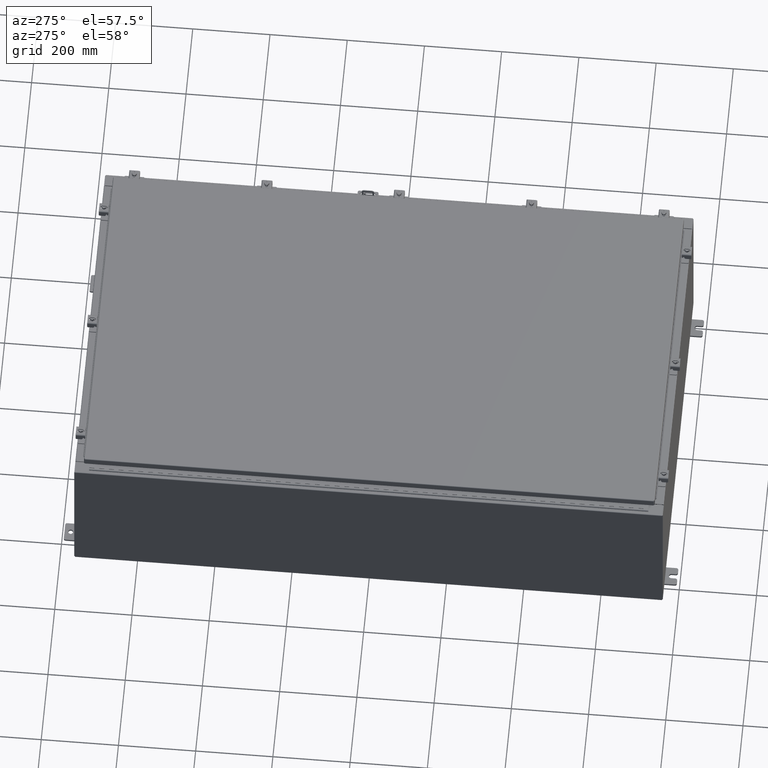
[diagram: clean part render]
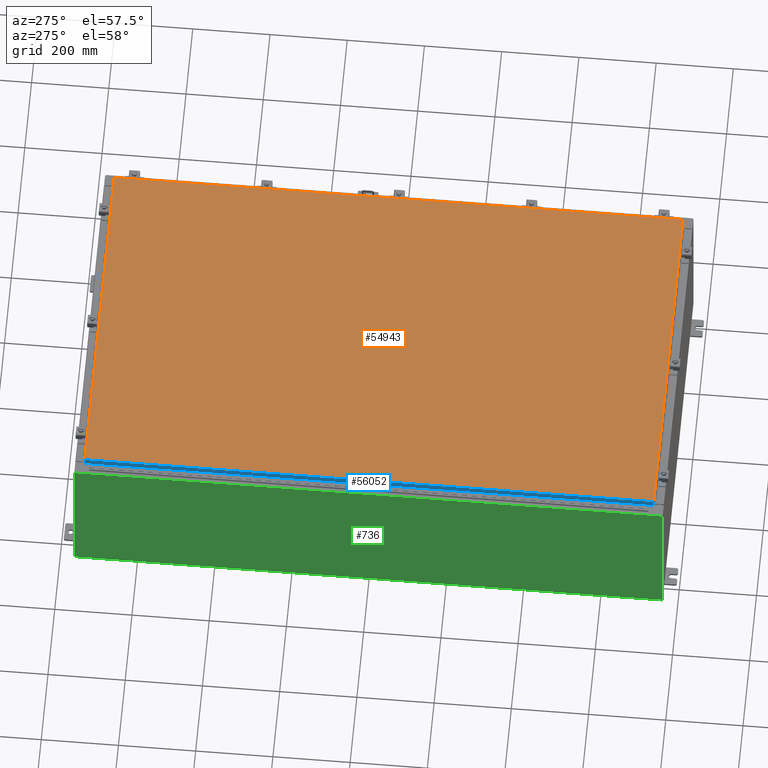
[diagram: same view with three faces highlighted in distinct colors, each labeled with its STEP entity id]
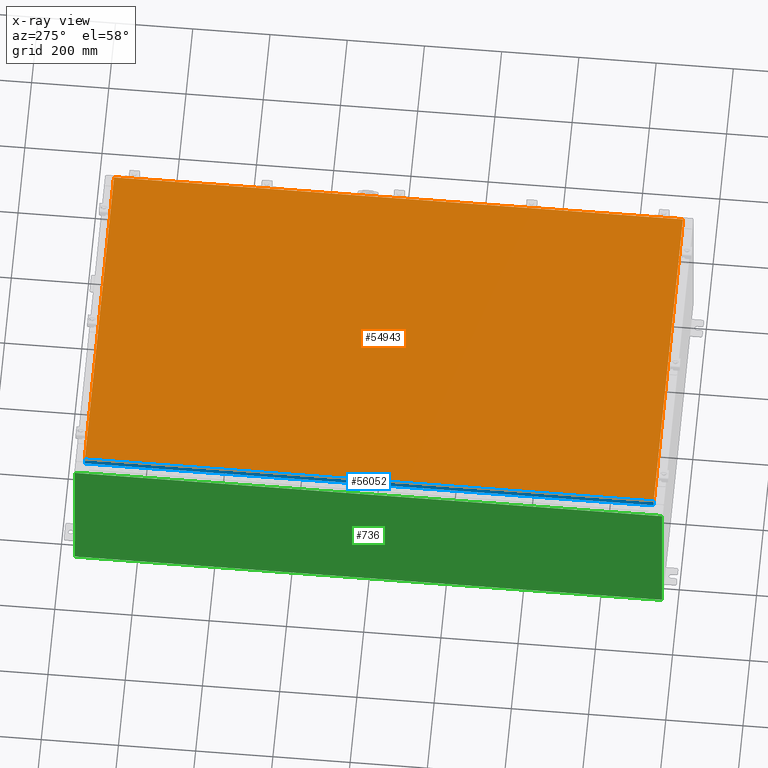
[diagram: x-ray of the same camera — body ghosted, the three highlighted faces saturated]
A machine part, auxiliary view with three faces highlighted in distinct colors.
The next image is the same camera in x-ray (body ghosted, the three faces saturated) — at least one of them is partly hidden behind the body in this view.
Their STEP definitions:

[orange] entity #54943 — the highlighted planar face has unit normal (0, 0, -1).
#248 = VECTOR ( 'NONE', #38539, 39.37007874015748100 ) ;
#1824 = LINE ( 'NONE', #38757, #248 ) ;
#3223 = VERTEX_POINT ( 'NONE', #8023 ) ;
#3505 = PLANE ( 'NONE',  #47360 ) ;
#3523 = CARTESIAN_POINT ( 'NONE',  ( 16.99030000000000500, -29.00630000000000000, -2.048885995248197400E-016 ) ) ;
#3841 = DIRECTION ( 'NONE',  ( 1.000000000000000000, -0.0000000000000000000, -0.0000000000000000000 ) ) ;
#3909 = EDGE_CURVE ( 'NONE', #44026, #21661, #1824, .T. ) ;
#5723 = ORIENTED_EDGE ( 'NONE', *, *, #49598, .T. ) ;
#5848 = CARTESIAN_POINT ( 'NONE',  ( -16.99029999999998400, 29.00630000000000000, 4.166068190338001500E-015 ) ) ;
#7656 = LINE ( 'NONE', #24133, #57832 ) ;
#8023 = CARTESIAN_POINT ( 'NONE',  ( -16.99029999999999800, -29.00630000000000300, 1.946441695485787500E-015 ) ) ;
#8465 = DIRECTION ( 'NONE',  ( -1.000000000000000000, 0.0000000000000000000, -0.0000000000000000000 ) ) ;
#17051 = VECTOR ( 'NONE', #25513, 39.37007874015748100 ) ;
#21252 = ORIENTED_EDGE ( 'NONE', *, *, #54045, .T. ) ;
#21661 = VERTEX_POINT ( 'NONE', #5848 ) ;
#24133 = CARTESIAN_POINT ( 'NONE',  ( 16.99030000000000500, -29.00630000000000000, -2.048885995248197400E-016 ) ) ;
#25513 = DIRECTION ( 'NONE',  ( 0.0000000000000000000, -1.000000000000000000, 0.0000000000000000000 ) ) ;
#29927 = LINE ( 'NONE', #30204, #17051 ) ;
#30204 = CARTESIAN_POINT ( 'NONE',  ( -16.99029999999998400, 29.00630000000000000, 4.166068190338001500E-015 ) ) ;
#31404 = VERTEX_POINT ( 'NONE', #3523 ) ;
#37519 = DIRECTION ( 'NONE',  ( 0.0000000000000000000, 0.0000000000000000000, -1.000000000000000000 ) ) ;
#37689 = FACE_OUTER_BOUND ( 'NONE', #56478, .T. ) ;
#37878 = CARTESIAN_POINT ( 'NONE',  ( -16.99029999999999800, -29.00630000000000300, 1.946441695485787500E-015 ) ) ;
#38539 = DIRECTION ( 'NONE',  ( -1.000000000000000000, -0.0000000000000000000, -0.0000000000000000000 ) ) ;
#38757 = CARTESIAN_POINT ( 'NONE',  ( 16.99030000000000500, 29.00630000000000300, 1.946441695485787500E-015 ) ) ;
#39799 = VECTOR ( 'NONE', #3841, 39.37007874015748100 ) ;
#41352 = ORIENTED_EDGE ( 'NONE', *, *, #3909, .T. ) ;
#44026 = VERTEX_POINT ( 'NONE', #59292 ) ;
#47360 = AXIS2_PLACEMENT_3D ( 'NONE', #56913, #37519, #8465 ) ;
#49598 = EDGE_CURVE ( 'NONE', #31404, #44026, #7656, .T. ) ;
#50499 = ORIENTED_EDGE ( 'NONE', *, *, #53416, .T. ) ;
#53358 = DIRECTION ( 'NONE',  ( 0.0000000000000000000, 1.000000000000000000, 0.0000000000000000000 ) ) ;
#53416 = EDGE_CURVE ( 'NONE', #3223, #31404, #54336, .T. ) ;
#54045 = EDGE_CURVE ( 'NONE', #21661, #3223, #29927, .T. ) ;
#54336 = LINE ( 'NONE', #37878, #39799 ) ;
#54943 = ADVANCED_FACE ( 'NONE', ( #37689 ), #3505, .F. ) ;
#56478 = EDGE_LOOP ( 'NONE', ( #50499, #5723, #41352, #21252 ) ) ;
#56913 = CARTESIAN_POINT ( 'NONE',  ( 0.0000000000000000000, 0.0000000000000000000, 0.0000000000000000000 ) ) ;
#57832 = VECTOR ( 'NONE', #53358, 39.37007874015748100 ) ;
#59292 = CARTESIAN_POINT ( 'NONE',  ( 16.99030000000000500, 29.00630000000000300, 1.946441695485787500E-015 ) ) ;

[blue] entity #56052 — the highlighted planar face has unit normal (1, -0, -0).
#1674 = CARTESIAN_POINT ( 'NONE',  ( -17.07799999999999600, 29.00515786437626500, 2.546194915468487600E-013 ) ) ;
#3480 = VERTEX_POINT ( 'NONE', #14569 ) ;
#4497 = VERTEX_POINT ( 'NONE', #51611 ) ;
#4508 = DIRECTION ( 'NONE',  ( 7.511783855542072300E-017, 1.000000000000000000, 1.220664876525586700E-016 ) ) ;
#4981 = ORIENTED_EDGE ( 'NONE', *, *, #32119, .F. ) ;
#5493 = ORIENTED_EDGE ( 'NONE', *, *, #13820, .F. ) ;
#6369 = VECTOR ( 'NONE', #29067, 39.37007874015748100 ) ;
#11051 = EDGE_CURVE ( 'NONE', #48194, #4497, #36793, .T. ) ;
#12144 = VECTOR ( 'NONE', #4508, 39.37007874015748100 ) ;
#13173 = VECTOR ( 'NONE', #39399, 39.37007874015748100 ) ;
#13425 = DIRECTION ( 'NONE',  ( 1.000000000000000000, -7.511783855542035400E-017, -3.034122441942816500E-015 ) ) ;
#13820 = EDGE_CURVE ( 'NONE', #59572, #4497, #23471, .T. ) ;
#14569 = CARTESIAN_POINT ( 'NONE',  ( -17.07799999999999900, -29.00515786437626500, -0.08769999999999787700 ) ) ;
#17053 = FACE_OUTER_BOUND ( 'NONE', #38147, .T. ) ;
#18795 = CARTESIAN_POINT ( 'NONE',  ( -17.07799999999999600, 29.00515786437626500, -0.08769999999999567000 ) ) ;
#22319 = VECTOR ( 'NONE', #35685, 39.37007874015748100 ) ;
#23471 = LINE ( 'NONE', #38541, #12144 ) ;
#25877 = CARTESIAN_POINT ( 'NONE',  ( -17.07800000000000300, -29.00515786437626200, -0.7949999999999996000 ) ) ;
#29067 = DIRECTION ( 'NONE',  ( -7.511783855542057500E-017, -1.000000000000000000, -7.511783855542072300E-017 ) ) ;
#29286 = CARTESIAN_POINT ( 'NONE',  ( -17.07799999999999900, -29.09400000000000100, -0.08770000000000004200 ) ) ;
#32119 = EDGE_CURVE ( 'NONE', #3480, #59572, #50515, .T. ) ;
#34480 = CARTESIAN_POINT ( 'NONE',  ( -17.07799999999999900, -29.00515786437626500, -0.07469999999999976700 ) ) ;
#35685 = DIRECTION ( 'NONE',  ( -3.034122441942816100E-015, 6.982962677686265900E-015, -1.000000000000000000 ) ) ;
#36793 = LINE ( 'NONE', #1674, #22319 ) ;
#38147 = EDGE_LOOP ( 'NONE', ( #43015, #61517, #5493, #4981 ) ) ;
#38541 = CARTESIAN_POINT ( 'NONE',  ( -17.07800000000000300, -29.09400000000000100, -0.7949999999999997100 ) ) ;
#39399 = DIRECTION ( 'NONE',  ( -3.034122441942816100E-015, 6.982962677686265900E-015, -1.000000000000000000 ) ) ;
#42533 = CARTESIAN_POINT ( 'NONE',  ( -17.07799999999999600, 1.282862446849468500E-015, 5.207755671951099000E-014 ) ) ;
#43015 = ORIENTED_EDGE ( 'NONE', *, *, #56204, .F. ) ;
#44521 = AXIS2_PLACEMENT_3D ( 'NONE', #42533, #13425, #47453 ) ;
#47248 = PLANE ( 'NONE',  #44521 ) ;
#47453 = DIRECTION ( 'NONE',  ( -3.034122441942816500E-015, 0.0000000000000000000, -1.000000000000000000 ) ) ;
#48194 = VERTEX_POINT ( 'NONE', #18795 ) ;
#50515 = LINE ( 'NONE', #34480, #13173 ) ;
#51611 = CARTESIAN_POINT ( 'NONE',  ( -17.07799999999999600, 29.00515786437626500, -0.7949999999999926000 ) ) ;
#56052 = ADVANCED_FACE ( 'NONE', ( #17053 ), #47248, .F. ) ;
#56204 = EDGE_CURVE ( 'NONE', #48194, #3480, #58079, .T. ) ;
#58079 = LINE ( 'NONE', #29286, #6369 ) ;
#59572 = VERTEX_POINT ( 'NONE', #25877 ) ;
#61517 = ORIENTED_EDGE ( 'NONE', *, *, #11051, .T. ) ;

[green] entity #736 — the highlighted planar face has unit normal (1, 0, 0).
#323 = EDGE_CURVE ( 'NONE', #53097, #42217, #27762, .T. ) ;
#736 = ADVANCED_FACE ( 'NONE', ( #3371 ), #59626, .F. ) ;
#1341 = ORIENTED_EDGE ( 'NONE', *, *, #43399, .T. ) ;
#2854 = VERTEX_POINT ( 'NONE', #24154 ) ;
#3371 = FACE_OUTER_BOUND ( 'NONE', #58532, .T. ) ;
#5786 = DIRECTION ( 'NONE',  ( 3.430827668758847900E-015, 0.0000000000000000000, -1.000000000000000000 ) ) ;
#6257 = CARTESIAN_POINT ( 'NONE',  ( -18.00000000000000400, 0.0000000000000000000, -6.201571169367084500E-014 ) ) ;
#7467 = EDGE_CURVE ( 'NONE', #2854, #25577, #15959, .T. ) ;
#8065 = CARTESIAN_POINT ( 'NONE',  ( -18.00000000000006000, -29.92530000000001800, 15.83759999999999700 ) ) ;
#8346 = VECTOR ( 'NONE', #5786, 39.37007874015748100 ) ;
#13368 = VECTOR ( 'NONE', #27335, 39.37007874015748100 ) ;
#15326 = ORIENTED_EDGE ( 'NONE', *, *, #323, .T. ) ;
#15959 = LINE ( 'NONE', #23619, #27313 ) ;
#16052 = DIRECTION ( 'NONE',  ( 1.000000000000000000, 0.0000000000000000000, 3.430827668758847900E-015 ) ) ;
#20685 = CARTESIAN_POINT ( 'NONE',  ( -18.00000000000006000, -29.92530000000001100, 15.83759999999999700 ) ) ;
#23380 = CARTESIAN_POINT ( 'NONE',  ( -18.00000000000000400, -29.92530000000001100, -6.201571169367084500E-014 ) ) ;
#23619 = CARTESIAN_POINT ( 'NONE',  ( -18.00000000000000400, 29.92529999999998900, 0.01299999999999984700 ) ) ;
#24154 = CARTESIAN_POINT ( 'NONE',  ( -18.00000000000000400, -29.92530000000001100, 0.01299999999999984700 ) ) ;
#25099 = CARTESIAN_POINT ( 'NONE',  ( -18.00000000000000400, 29.92529999999998900, -6.201571169367084500E-014 ) ) ;
#25577 = VERTEX_POINT ( 'NONE', #26722 ) ;
#26722 = CARTESIAN_POINT ( 'NONE',  ( -18.00000000000000400, 29.92529999999998600, 0.01299999999999984800 ) ) ;
#27313 = VECTOR ( 'NONE', #57688, 39.37007874015748100 ) ;
#27335 = DIRECTION ( 'NONE',  ( 0.0000000000000000000, 1.000000000000000000, 0.0000000000000000000 ) ) ;
#27762 = LINE ( 'NONE', #8065, #13368 ) ;
#31853 = ORIENTED_EDGE ( 'NONE', *, *, #7467, .F. ) ;
#35686 = LINE ( 'NONE', #25099, #8346 ) ;
#36023 = ORIENTED_EDGE ( 'NONE', *, *, #60925, .T. ) ;
#37844 = DIRECTION ( 'NONE',  ( -3.430827668758847900E-015, 0.0000000000000000000, 1.000000000000000000 ) ) ;
#40347 = CARTESIAN_POINT ( 'NONE',  ( -18.00000000000005700, 29.92529999999998900, 15.83759999999999700 ) ) ;
#42217 = VERTEX_POINT ( 'NONE', #40347 ) ;
#43399 = EDGE_CURVE ( 'NONE', #42217, #25577, #35686, .T. ) ;
#50134 = DIRECTION ( 'NONE',  ( 3.430827668758847900E-015, 0.0000000000000000000, -1.000000000000000000 ) ) ;
#51608 = VECTOR ( 'NONE', #37844, 39.37007874015748100 ) ;
#53097 = VERTEX_POINT ( 'NONE', #20685 ) ;
#57688 = DIRECTION ( 'NONE',  ( -0.0000000000000000000, 1.000000000000000000, -0.0000000000000000000 ) ) ;
#58532 = EDGE_LOOP ( 'NONE', ( #15326, #1341, #31853, #36023 ) ) ;
#59626 = PLANE ( 'NONE',  #62685 ) ;
#59891 = LINE ( 'NONE', #23380, #51608 ) ;
#60925 = EDGE_CURVE ( 'NONE', #2854, #53097, #59891, .T. ) ;
#62685 = AXIS2_PLACEMENT_3D ( 'NONE', #6257, #16052, #50134 ) ;